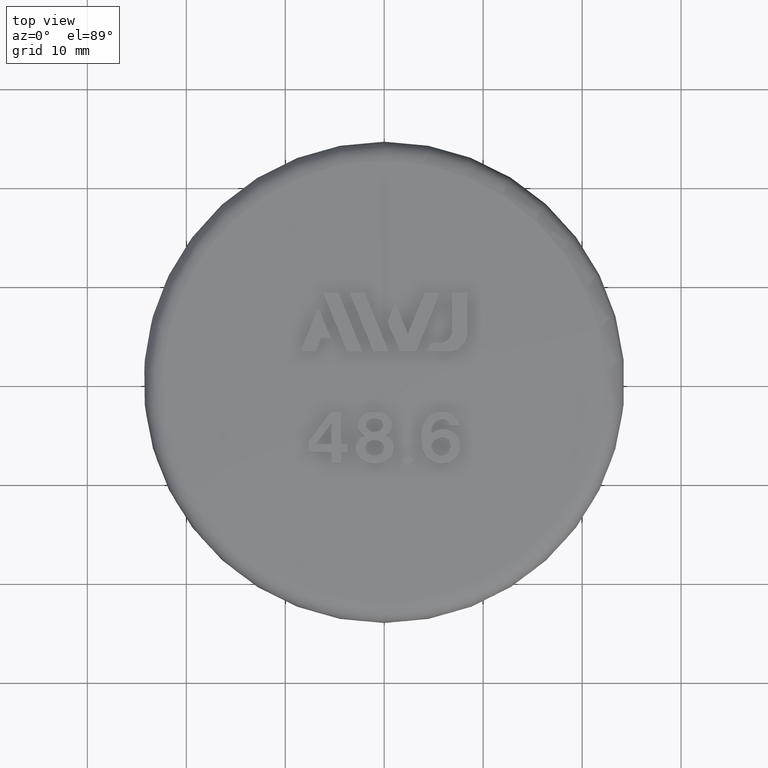
[diagram: clean part render]
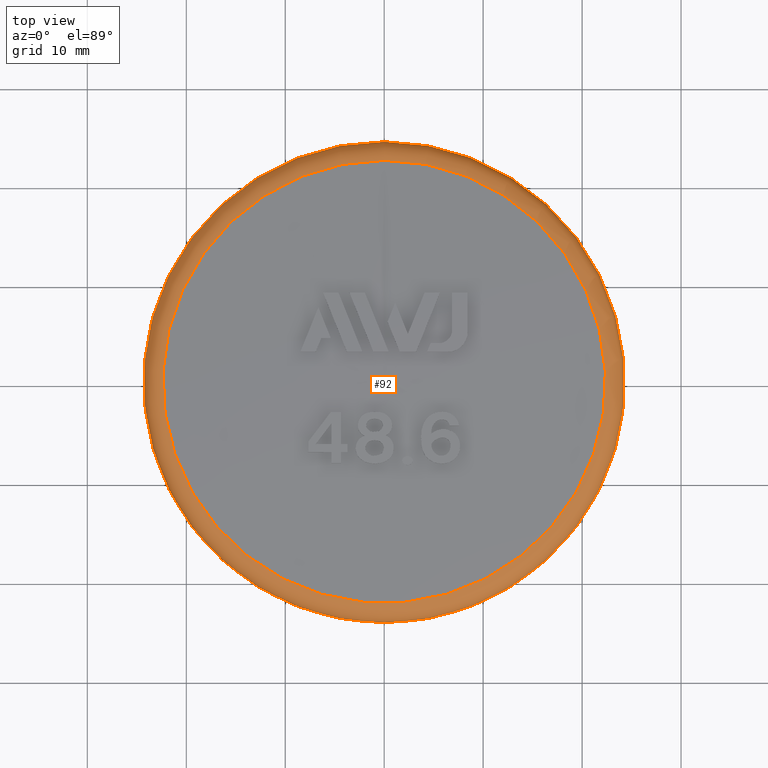
[diagram: same view with one face highlighted and labeled with its STEP entity id]
A machine part, top view. The second image highlights one B-rep face of the part: STEP entity #92.
In plain terms, the highlighted toroidal blend (fillet) surface has major radius 22.3 mm and minor (blend) radius 2 mm.
Its self-contained STEP definition (entity closure, byte-faithful):
#92 = ADVANCED_FACE( '', ( #258, #259 ), #260, .T. );
#258 = FACE_OUTER_BOUND( '', #647, .T. );
#259 = FACE_OUTER_BOUND( '', #648, .T. );
#260 = TOROIDAL_SURFACE( '', #649, 22.3000000000000, 2.00000000000000 );
#647 = EDGE_LOOP( '', ( #1330 ) );
#648 = EDGE_LOOP( '', ( #1331 ) );
#649 = AXIS2_PLACEMENT_3D( '', #1332, #1333, #1334 );
#1330 = ORIENTED_EDGE( '', *, *, #2354, .F. );
#1331 = ORIENTED_EDGE( '', *, *, #2295, .T. );
#1332 = CARTESIAN_POINT( '', ( 0.000000000000000, 1.57987526658689E-016, 24.5802173272343 ) );
#1333 = DIRECTION( '', ( 0.000000000000000, -6.12303176911189E-017, -1.00000000000000 ) );
#1334 = DIRECTION( '', ( 0.000000000000000, 1.00000000000000, -6.12303176911189E-017 ) );
#2295 = EDGE_CURVE( '', #2639, #2639, #2640, .T. );
#2354 = EDGE_CURVE( '', #2741, #2741, #2742, .T. );
#2639 = VERTEX_POINT( '', #3384 );
#2640 = CIRCLE( '', #3385, 22.3783274279206 );
#2741 = VERTEX_POINT( '', #3761 );
#2742 = CIRCLE( '', #3762, 24.3000000000000 );
#3384 = CARTESIAN_POINT( '', ( 0.000000000000000, 22.3783274279206, 26.5786829421586 ) );
#3385 = AXIS2_PLACEMENT_3D( '', #4982, #4983, #4984 );
#3761 = CARTESIAN_POINT( '', ( 0.000000000000000, 24.3000000000000, 24.5802173272343 ) );
#3762 = AXIS2_PLACEMENT_3D( '', #4999, #5000, #5001 );
#4982 = CARTESIAN_POINT( '', ( 0.000000000000000, 2.80354211155276E-016, 26.5786829421586 ) );
#4983 = DIRECTION( '', ( 0.000000000000000, -6.12303176911189E-017, -1.00000000000000 ) );
#4984 = DIRECTION( '', ( 0.000000000000000, 1.00000000000000, -6.12303176911189E-017 ) );
#4999 = CARTESIAN_POINT( '', ( 0.000000000000000, 1.57987526658689E-016, 24.5802173272343 ) );
#5000 = DIRECTION( '', ( 0.000000000000000, -6.12303176911189E-017, -1.00000000000000 ) );
#5001 = DIRECTION( '', ( 0.000000000000000, 1.00000000000000, -6.12303176911189E-017 ) );